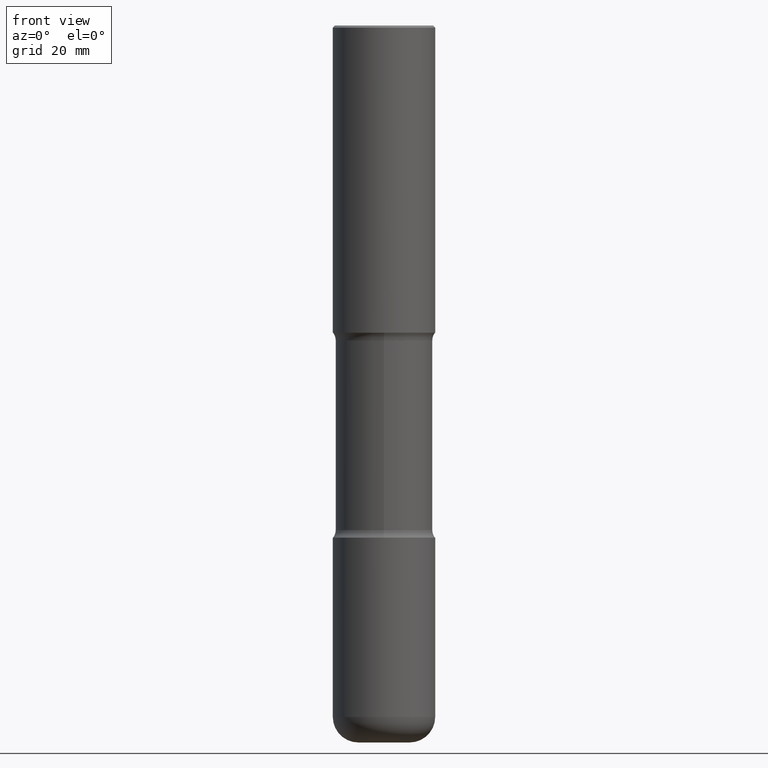
[diagram: clean part render]
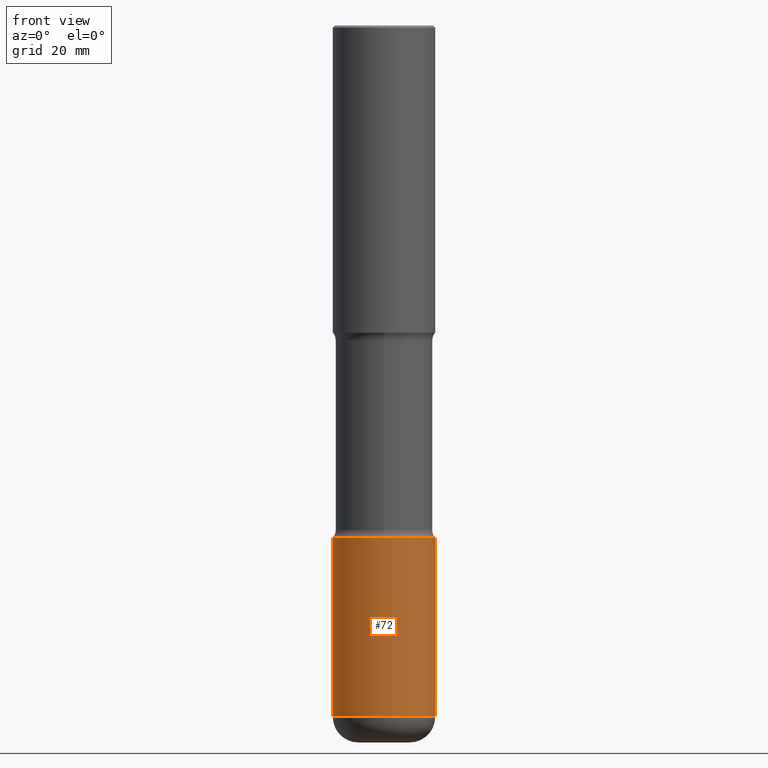
[diagram: same view with one face highlighted and labeled with its STEP entity id]
A machine part, front view. The second image highlights one B-rep face of the part: STEP entity #72.
In plain terms, the highlighted cylindrical surface (partial cylindrical patch) has radius 12.7 mm, axis along (-0, 0, 1).
Its self-contained STEP definition (entity closure, byte-faithful):
#12 = CARTESIAN_POINT ( 'NONE',  ( 0.5000000000000002220, -2.094888803305886009E-14, -4.999999999999999112 ) ) ;
#28 = EDGE_LOOP ( 'NONE', ( #41, #60, #373, #326 ) ) ;
#30 = VERTEX_POINT ( 'NONE', #12 ) ;
#41 = ORIENTED_EDGE ( 'NONE', *, *, #346, .F. ) ;
#58 = DIRECTION ( 'NONE',  ( -2.445468806185136597E-29, 3.491481338843145583E-15, 1.000000000000000000 ) ) ;
#60 = ORIENTED_EDGE ( 'NONE', *, *, #507, .T. ) ;
#70 = VERTEX_POINT ( 'NONE', #320 ) ;
#72 = ADVANCED_FACE ( 'NONE', ( #196 ), #278, .T. ) ;
#81 = CARTESIAN_POINT ( 'NONE',  ( -0.5000000000000002220, -1.695973918690297853E-14, -4.999999999999999112 ) ) ;
#106 = DIRECTION ( 'NONE',  ( -2.445468806185136877E-29, 3.491481338843145188E-15, 1.000000000000000000 ) ) ;
#110 = DIRECTION ( 'NONE',  ( -2.445468806185136597E-29, 3.491481338843145583E-15, 1.000000000000000000 ) ) ;
#112 = LINE ( 'NONE', #448, #176 ) ;
#115 = VERTEX_POINT ( 'NONE', #81 ) ;
#123 = CARTESIAN_POINT ( 'NONE',  ( -0.5000000000000007772, -2.001478535839073126E-14, -6.750000000000000888 ) ) ;
#125 = VECTOR ( 'NONE', #522, 39.37007874015748143 ) ;
#134 = CIRCLE ( 'NONE', #154, 0.5000000000000005551 ) ;
#148 = CARTESIAN_POINT ( 'NONE',  ( 1.650691444174967427E-28, -2.356749903719123535E-14, -6.750000000000000888 ) ) ;
#154 = AXIS2_PLACEMENT_3D ( 'NONE', #148, #58, #494 ) ;
#176 = VECTOR ( 'NONE', #106, 39.37007874015748143 ) ;
#196 = FACE_OUTER_BOUND ( 'NONE', #28, .T. ) ;
#205 = VERTEX_POINT ( 'NONE', #123 ) ;
#278 = CYLINDRICAL_SURFACE ( 'NONE', #451, 0.5000000000000004441 ) ;
#279 = EDGE_CURVE ( 'NONE', #115, #30, #308, .T. ) ;
#296 = CARTESIAN_POINT ( 'NONE',  ( 1.222734403092568074E-28, -1.745740669421572673E-14, -4.999999999999999112 ) ) ;
#308 = CIRCLE ( 'NONE', #433, 0.5000000000000002220 ) ;
#320 = CARTESIAN_POINT ( 'NONE',  ( 0.5000000000000007772, -2.705898037603436870E-14, -6.750000000000000888 ) ) ;
#326 = ORIENTED_EDGE ( 'NONE', *, *, #279, .F. ) ;
#346 = EDGE_CURVE ( 'NONE', #205, #115, #515, .T. ) ;
#365 = CARTESIAN_POINT ( 'NONE',  ( 0.000000000000000000, 0.000000000000000000, 0.000000000000000000 ) ) ;
#373 = ORIENTED_EDGE ( 'NONE', *, *, #510, .T. ) ;
#380 = DIRECTION ( 'NONE',  ( -2.445468806185136597E-29, 3.491481338843145583E-15, 1.000000000000000000 ) ) ;
#427 = CARTESIAN_POINT ( 'NONE',  ( -0.5000000000000004441, 3.552713678800504085E-15, -2.459467545127455133E-29 ) ) ;
#433 = AXIS2_PLACEMENT_3D ( 'NONE', #296, #380, #469 ) ;
#448 = CARTESIAN_POINT ( 'NONE',  ( 0.5000000000000004441, -3.491481338843136511E-15, 2.438088387897969858E-29 ) ) ;
#451 = AXIS2_PLACEMENT_3D ( 'NONE', #365, #110, #537 ) ;
#469 = DIRECTION ( 'NONE',  ( 1.000000000000000000, -6.982962677686263555E-15, 0.000000000000000000 ) ) ;
#494 = DIRECTION ( 'NONE',  ( 1.000000000000000000, -6.982962677686262766E-15, 0.000000000000000000 ) ) ;
#507 = EDGE_CURVE ( 'NONE', #205, #70, #134, .T. ) ;
#510 = EDGE_CURVE ( 'NONE', #70, #30, #112, .T. ) ;
#515 = LINE ( 'NONE', #427, #125 ) ;
#522 = DIRECTION ( 'NONE',  ( -2.445468806185136877E-29, 3.491481338843145188E-15, 1.000000000000000000 ) ) ;
#537 = DIRECTION ( 'NONE',  ( 1.000000000000000000, -6.982962677686266711E-15, 4.876176775795935232E-29 ) ) ;